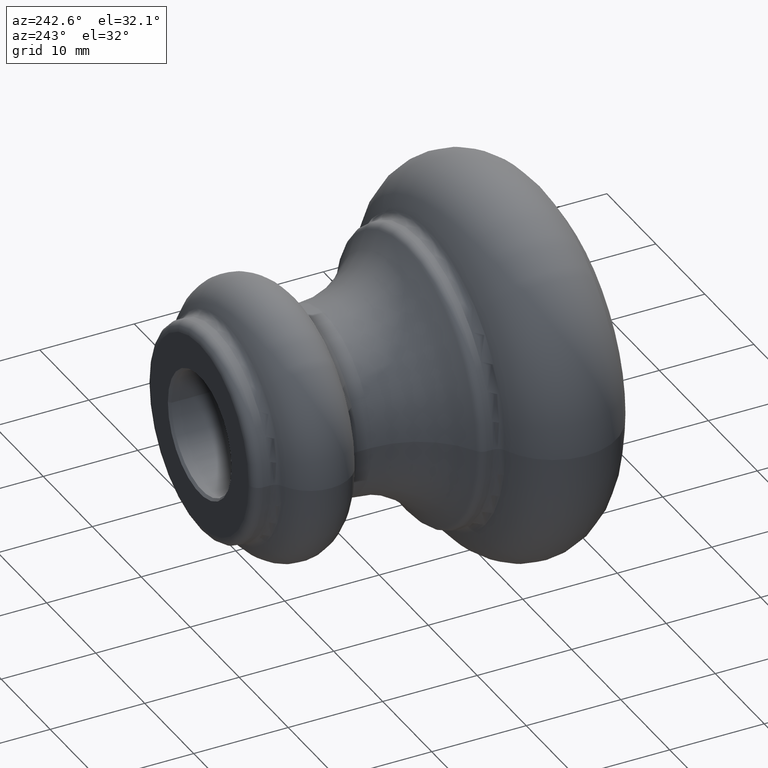
[diagram: clean part render]
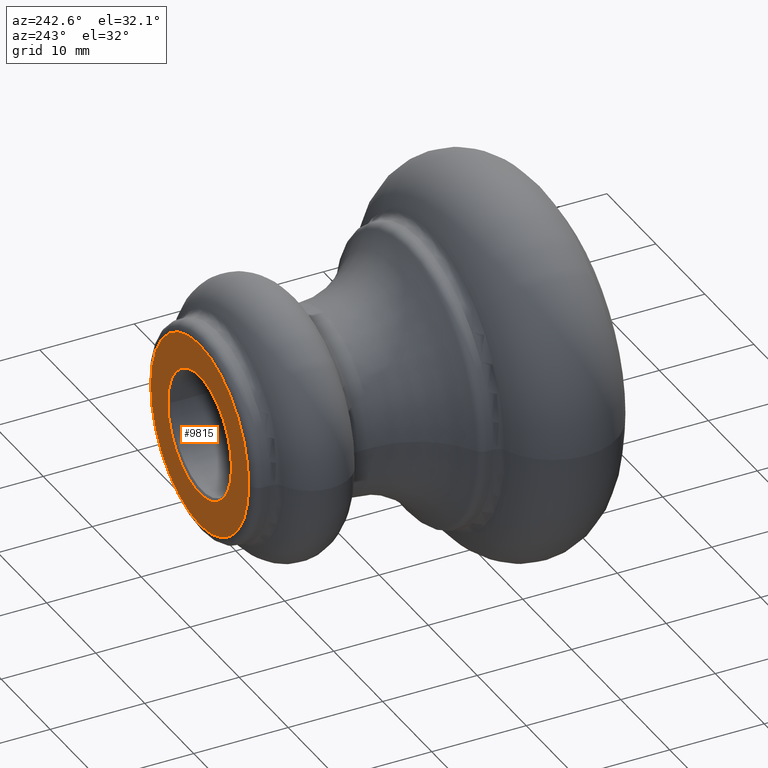
[diagram: same view with one face highlighted and labeled with its STEP entity id]
A machine part, auxiliary view. The second image highlights one B-rep face of the part: STEP entity #9815.
In plain terms, the highlighted planar face has unit normal (0, 1, -0).
Its self-contained STEP definition (entity closure, byte-faithful):
#93 = CARTESIAN_POINT ( 'NONE',  ( -9.999999999999998224, 39.00000000000000000, 0.000000000000000000 ) ) ;
#490 = DIRECTION ( 'NONE',  ( 3.140119997813719199E-18, 1.000000000000000000, -0.000000000000000000 ) ) ;
#558 = CIRCLE ( 'NONE', #7940, 9.999999999999998224 ) ;
#713 = ORIENTED_EDGE ( 'NONE', *, *, #2801, .T. ) ;
#1142 = CARTESIAN_POINT ( 'NONE',  ( 9.999999999999998224, 39.00000000000000000, 1.285879139104720633E-15 ) ) ;
#1159 = DIRECTION ( 'NONE',  ( -3.140119997813719199E-18, -1.000000000000000000, 0.000000000000000000 ) ) ;
#1446 = CARTESIAN_POINT ( 'NONE',  ( 5.423194480368296960E-35, 39.00000000000000000, 0.000000000000000000 ) ) ;
#1592 = VERTEX_POINT ( 'NONE', #7915 ) ;
#2354 = EDGE_CURVE ( 'NONE', #8251, #1592, #3225, .T. ) ;
#2801 = EDGE_CURVE ( 'NONE', #6835, #10979, #10549, .T. ) ;
#3216 = DIRECTION ( 'NONE',  ( 3.140119997813719199E-18, 1.000000000000000000, -0.000000000000000000 ) ) ;
#3225 = CIRCLE ( 'NONE', #6063, 6.500000000000005329 ) ;
#3646 = FACE_OUTER_BOUND ( 'NONE', #8967, .T. ) ;
#4357 = FACE_BOUND ( 'NONE', #5853, .T. ) ;
#4431 = ORIENTED_EDGE ( 'NONE', *, *, #10580, .T. ) ;
#4707 = CARTESIAN_POINT ( 'NONE',  ( 1.224646799147350495E-16, 39.00000000000000000, 0.000000000000000000 ) ) ;
#4833 = CARTESIAN_POINT ( 'NONE',  ( 2.724549893879945790E-15, 39.00000000000000000, 0.000000000000000000 ) ) ;
#4983 = DIRECTION ( 'NONE',  ( -3.140119997813719199E-18, -1.000000000000000000, 0.000000000000000000 ) ) ;
#5224 = AXIS2_PLACEMENT_3D ( 'NONE', #10772, #5655, #7377 ) ;
#5402 = CARTESIAN_POINT ( 'NONE',  ( 6.500000000000007994, 39.00000000000000000, 7.960204194457803365E-16 ) ) ;
#5510 = CIRCLE ( 'NONE', #9575, 6.500000000000005329 ) ;
#5655 = DIRECTION ( 'NONE',  ( 3.140119997813719199E-18, 1.000000000000000000, -0.000000000000000000 ) ) ;
#5853 = EDGE_LOOP ( 'NONE', ( #8028, #8156 ) ) ;
#6063 = AXIS2_PLACEMENT_3D ( 'NONE', #4833, #4983, #10788 ) ;
#6835 = VERTEX_POINT ( 'NONE', #1142 ) ;
#7262 = DIRECTION ( 'NONE',  ( -1.000000000000000000, 0.000000000000000000, 0.000000000000000000 ) ) ;
#7377 = DIRECTION ( 'NONE',  ( -1.000000000000000000, 0.000000000000000000, 0.000000000000000000 ) ) ;
#7915 = CARTESIAN_POINT ( 'NONE',  ( -6.500000000000003553, 39.00000000000000000, 0.000000000000000000 ) ) ;
#7940 = AXIS2_PLACEMENT_3D ( 'NONE', #4707, #490, #7262 ) ;
#8028 = ORIENTED_EDGE ( 'NONE', *, *, #9094, .T. ) ;
#8156 = ORIENTED_EDGE ( 'NONE', *, *, #2354, .T. ) ;
#8251 = VERTEX_POINT ( 'NONE', #5402 ) ;
#8347 = PLANE ( 'NONE',  #9446 ) ;
#8383 = DIRECTION ( 'NONE',  ( -1.000000000000000000, 3.140119997813719199E-18, 0.000000000000000000 ) ) ;
#8734 = CARTESIAN_POINT ( 'NONE',  ( 2.724549893879945790E-15, 39.00000000000000000, 0.000000000000000000 ) ) ;
#8967 = EDGE_LOOP ( 'NONE', ( #4431, #713 ) ) ;
#9094 = EDGE_CURVE ( 'NONE', #1592, #8251, #5510, .T. ) ;
#9446 = AXIS2_PLACEMENT_3D ( 'NONE', #1446, #3216, #8383 ) ;
#9575 = AXIS2_PLACEMENT_3D ( 'NONE', #8734, #1159, #9619 ) ;
#9619 = DIRECTION ( 'NONE',  ( -1.000000000000000000, 0.000000000000000000, 0.000000000000000000 ) ) ;
#9815 = ADVANCED_FACE ( 'NONE', ( #4357, #3646 ), #8347, .T. ) ;
#10549 = CIRCLE ( 'NONE', #5224, 9.999999999999998224 ) ;
#10580 = EDGE_CURVE ( 'NONE', #10979, #6835, #558, .T. ) ;
#10772 = CARTESIAN_POINT ( 'NONE',  ( 1.224646799147350495E-16, 39.00000000000000000, 0.000000000000000000 ) ) ;
#10788 = DIRECTION ( 'NONE',  ( -1.000000000000000000, 0.000000000000000000, 0.000000000000000000 ) ) ;
#10979 = VERTEX_POINT ( 'NONE', #93 ) ;